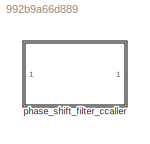
MODEL slx_992b9a66d889
KIND library
CONFIG AbsTol = auto
CONFIG EnableMultiTasking = off
CONFIG FixedStep = auto
CONFIG MaxStep = auto
CONFIG MinStep = auto
CONFIG RelTol = 1e-3
CONFIG SampleTimeConstraint = Unconstrained
CONFIG SolverName = VariableStepAuto
CONFIG StartTime = 0.0
CONFIG StopTime = 10.0
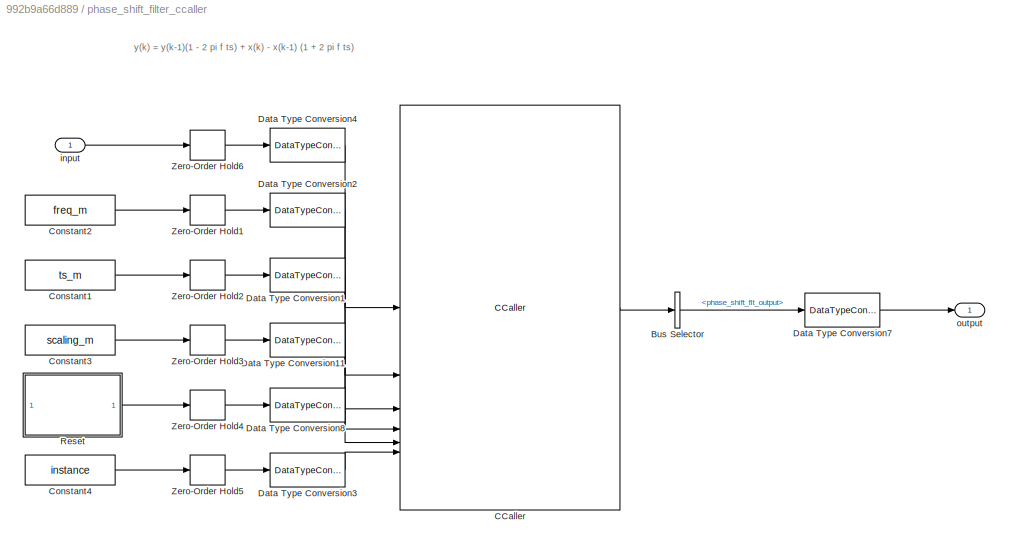
BLOCK [SubSystem] phase_shift_filter_ccaller
BLOCK [BusSelector] phase_shift_filter_ccaller/Bus Selector
  OutputSignals = phase_shift_flt_output
BLOCK [CCaller] phase_shift_filter_ccaller/CCaller
  FunctionName = phase_shift_flt_process_simulink
  PortSpecificationStruct = %)30     .    , P   8    (     @         %    "     <    !     0         %  0 "0    $    _    07)G3F%M90  4&]R=$YA;64 4V-O<&4     26YD97@     5'EP90      4VEZ90      27-';&]B86P   X    P    !@    @    $          4    (     0    ,    !         !   P!O=70 #@   #     &    "     0         !0    @    !     P    $         $  # &]U=  .    .     8    (    !          %    "     $    &     0         0    !@...<+3773ch>
  SampleTime = tc_m
BLOCK [Constant] phase_shift_filter_ccaller/Constant1
  Value = ts_m
BLOCK [Constant] phase_shift_filter_ccaller/Constant2
  Value = freq_m
BLOCK [Constant] phase_shift_filter_ccaller/Constant3
  Value = scaling_m
BLOCK [Constant] phase_shift_filter_ccaller/Constant4
  Value = instance
BLOCK [DataTypeConversion] phase_shift_filter_ccaller/Data Type Conversion1
  OutDataTypeStr = single
  RndMeth = Floor
  SaturateOnIntegerOverflow = off
BLOCK [DataTypeConversion] phase_shift_filter_ccaller/Data Type Conversion11
  OutDataTypeStr = single
  RndMeth = Floor
  SaturateOnIntegerOverflow = off
BLOCK [DataTypeConversion] phase_shift_filter_ccaller/Data Type Conversion2
  OutDataTypeStr = single
  RndMeth = Floor
  SaturateOnIntegerOverflow = off
BLOCK [DataTypeConversion] phase_shift_filter_ccaller/Data Type Conversion3
  OutDataTypeStr = uint8
  RndMeth = Floor
  SaturateOnIntegerOverflow = off
BLOCK [DataTypeConversion] phase_shift_filter_ccaller/Data Type Conversion4
  OutDataTypeStr = single
  RndMeth = Floor
  SaturateOnIntegerOverflow = off
BLOCK [DataTypeConversion] phase_shift_filter_ccaller/Data Type Conversion7
  OutDataTypeStr = double
  RndMeth = Floor
  SaturateOnIntegerOverflow = off
BLOCK [DataTypeConversion] phase_shift_filter_ccaller/Data Type Conversion8
  OutDataTypeStr = uint8
  RndMeth = Floor
  SaturateOnIntegerOverflow = off
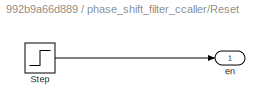
BLOCK [SubSystem] phase_shift_filter_ccaller/Reset
BLOCK [Step] phase_shift_filter_ccaller/Reset/Step
  After = 0
  Before = 1
  SampleTime = tc_m
  Time = reset_time_release
BLOCK [Outport] phase_shift_filter_ccaller/Reset/en
  IconDisplay = Signal name
BLOCK [ZeroOrderHold] phase_shift_filter_ccaller/Zero-Order Hold1
  SampleTime = tc_m
BLOCK [ZeroOrderHold] phase_shift_filter_ccaller/Zero-Order Hold2
  SampleTime = tc_m
BLOCK [ZeroOrderHold] phase_shift_filter_ccaller/Zero-Order Hold3
  SampleTime = tc_m
BLOCK [ZeroOrderHold] phase_shift_filter_ccaller/Zero-Order Hold4
  SampleTime = tc_m
BLOCK [ZeroOrderHold] phase_shift_filter_ccaller/Zero-Order Hold5
  SampleTime = tc_m
BLOCK [ZeroOrderHold] phase_shift_filter_ccaller/Zero-Order Hold6
  SampleTime = tc_m
BLOCK [Inport] phase_shift_filter_ccaller/input
BLOCK [Outport] phase_shift_filter_ccaller/output
ANNOTATION phase_shift_filter_ccaller: y(k) = y(k-1)(1 - 2 pi f ts) + x(k) - x(k-1) (1 + 2 pi f ts)
LINE phase_shift_filter_ccaller/Bus Selector:1 -> phase_shift_filter_ccaller/Data Type Conversion7:1
LINE phase_shift_filter_ccaller/CCaller:1 -> phase_shift_filter_ccaller/Bus Selector:1
LINE phase_shift_filter_ccaller/Constant1:1 -> phase_shift_filter_ccaller/Zero-Order Hold2:1
LINE phase_shift_filter_ccaller/Constant2:1 -> phase_shift_filter_ccaller/Zero-Order Hold1:1
LINE phase_shift_filter_ccaller/Constant3:1 -> phase_shift_filter_ccaller/Zero-Order Hold3:1
LINE phase_shift_filter_ccaller/Constant4:1 -> phase_shift_filter_ccaller/Zero-Order Hold5:1
LINE phase_shift_filter_ccaller/Data Type Conversion11:1 -> phase_shift_filter_ccaller/CCaller:4
LINE phase_shift_filter_ccaller/Data Type Conversion1:1 -> phase_shift_filter_ccaller/CCaller:3
LINE phase_shift_filter_ccaller/Data Type Conversion2:1 -> phase_shift_filter_ccaller/CCaller:2
LINE phase_shift_filter_ccaller/Data Type Conversion3:1 -> phase_shift_filter_ccaller/CCaller:6
LINE phase_shift_filter_ccaller/Data Type Conversion4:1 -> phase_shift_filter_ccaller/CCaller:1
LINE phase_shift_filter_ccaller/Data Type Conversion7:1 -> phase_shift_filter_ccaller/output:1
LINE phase_shift_filter_ccaller/Data Type Conversion8:1 -> phase_shift_filter_ccaller/CCaller:5
LINE phase_shift_filter_ccaller/Reset/Step:1 -> phase_shift_filter_ccaller/Reset/en:1
LINE phase_shift_filter_ccaller/Reset:1 -> phase_shift_filter_ccaller/Zero-Order Hold4:1
LINE phase_shift_filter_ccaller/Zero-Order Hold1:1 -> phase_shift_filter_ccaller/Data Type Conversion2:1
LINE phase_shift_filter_ccaller/Zero-Order Hold2:1 -> phase_shift_filter_ccaller/Data Type Conversion1:1
LINE phase_shift_filter_ccaller/Zero-Order Hold3:1 -> phase_shift_filter_ccaller/Data Type Conversion11:1
LINE phase_shift_filter_ccaller/Zero-Order Hold4:1 -> phase_shift_filter_ccaller/Data Type Conversion8:1
LINE phase_shift_filter_ccaller/Zero-Order Hold5:1 -> phase_shift_filter_ccaller/Data Type Conversion3:1
LINE phase_shift_filter_ccaller/Zero-Order Hold6:1 -> phase_shift_filter_ccaller/Data Type Conversion4:1
LINE phase_shift_filter_ccaller/input:1 -> phase_shift_filter_ccaller/Zero-Order Hold6:1
